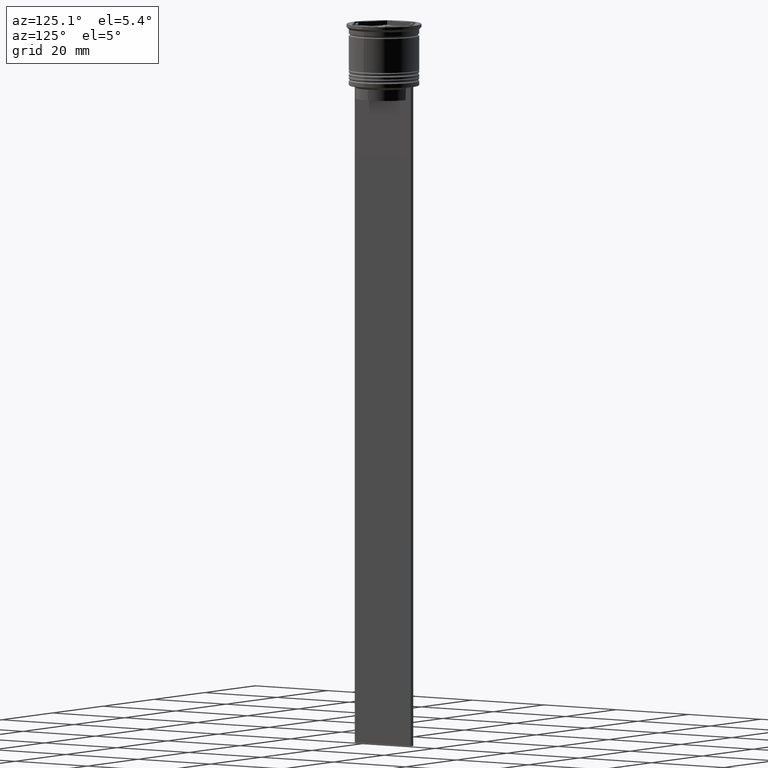
[diagram: clean part render]
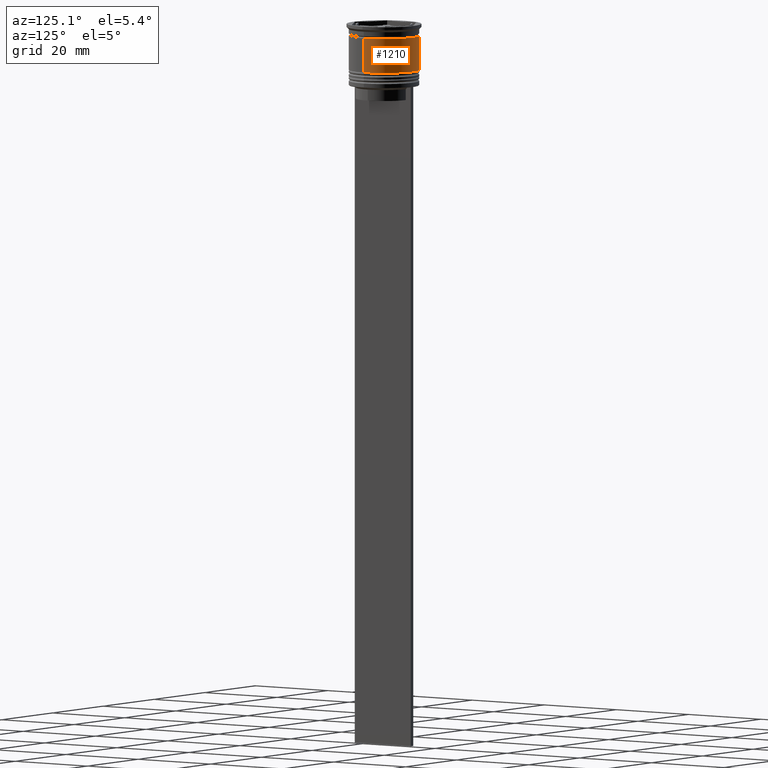
[diagram: same view with one face highlighted and labeled with its STEP entity id]
A machine part, auxiliary view. The second image highlights one B-rep face of the part: STEP entity #1210.
In plain terms, the highlighted cylindrical surface (edge-blend (fillet) strip) has radius 8 mm, axis along (-0, -0, 1).
Its self-contained STEP definition (entity closure, byte-faithful):
#3 = CARTESIAN_POINT ( 'NONE',  ( 0.000000000000000000, 0.000000000000000000, -10.50000000000000000 ) ) ;
#157 = CARTESIAN_POINT ( 'NONE',  ( 8.000000000000001776, 0.000000000000000000, -10.50000000000000000 ) ) ;
#189 = DIRECTION ( 'NONE',  ( 1.000000000000000000, 0.000000000000000000, 0.000000000000000000 ) ) ;
#234 = CARTESIAN_POINT ( 'NONE',  ( 0.000000000000000000, 0.000000000000000000, 0.000000000000000000 ) ) ;
#253 = DIRECTION ( 'NONE',  ( -0.000000000000000000, -0.000000000000000000, 1.000000000000000000 ) ) ;
#291 = ORIENTED_EDGE ( 'NONE', *, *, #2361, .F. ) ;
#318 = VERTEX_POINT ( 'NONE', #1354 ) ;
#449 = DIRECTION ( 'NONE',  ( -0.000000000000000000, -0.000000000000000000, 1.000000000000000000 ) ) ;
#499 = VERTEX_POINT ( 'NONE', #157 ) ;
#609 = CARTESIAN_POINT ( 'NONE',  ( 7.999999999999998224, 0.000000000000000000, -2.700000000000001510 ) ) ;
#661 = VERTEX_POINT ( 'NONE', #609 ) ;
#680 = DIRECTION ( 'NONE',  ( -0.000000000000000000, -0.000000000000000000, 1.000000000000000000 ) ) ;
#688 = ORIENTED_EDGE ( 'NONE', *, *, #1709, .T. ) ;
#719 = VECTOR ( 'NONE', #449, 1000.000000000000000 ) ;
#838 = DIRECTION ( 'NONE',  ( 1.000000000000000000, 0.000000000000000000, 0.000000000000000000 ) ) ;
#854 = VERTEX_POINT ( 'NONE', #1759 ) ;
#870 = AXIS2_PLACEMENT_3D ( 'NONE', #3, #1514, #189 ) ;
#1096 = CARTESIAN_POINT ( 'NONE',  ( 8.000000000000000000, 0.000000000000000000, 0.000000000000000000 ) ) ;
#1210 = ADVANCED_FACE ( 'NONE', ( #1537 ), #2093, .T. ) ;
#1341 = CARTESIAN_POINT ( 'NONE',  ( -8.000000000000000000, 9.797174393178825657E-16, 0.000000000000000000 ) ) ;
#1354 = CARTESIAN_POINT ( 'NONE',  ( -7.999999999999998224, 9.797174393178823685E-16, -2.700000000000001510 ) ) ;
#1454 = AXIS2_PLACEMENT_3D ( 'NONE', #234, #253, #838 ) ;
#1514 = DIRECTION ( 'NONE',  ( -0.000000000000000000, -0.000000000000000000, 1.000000000000000000 ) ) ;
#1537 = FACE_OUTER_BOUND ( 'NONE', #2255, .T. ) ;
#1615 = VECTOR ( 'NONE', #1887, 1000.000000000000000 ) ;
#1709 = EDGE_CURVE ( 'NONE', #854, #318, #2307, .T. ) ;
#1759 = CARTESIAN_POINT ( 'NONE',  ( -8.000000000000001776, 9.797174393178827630E-16, -10.50000000000000000 ) ) ;
#1783 = EDGE_CURVE ( 'NONE', #661, #318, #2160, .T. ) ;
#1812 = AXIS2_PLACEMENT_3D ( 'NONE', #2371, #680, #2346 ) ;
#1824 = LINE ( 'NONE', #1096, #1615 ) ;
#1880 = CIRCLE ( 'NONE', #870, 8.000000000000001776 ) ;
#1887 = DIRECTION ( 'NONE',  ( -0.000000000000000000, -0.000000000000000000, 1.000000000000000000 ) ) ;
#1905 = EDGE_CURVE ( 'NONE', #499, #854, #1880, .T. ) ;
#2040 = ORIENTED_EDGE ( 'NONE', *, *, #1905, .T. ) ;
#2093 = CYLINDRICAL_SURFACE ( 'NONE', #1454, 8.000000000000000000 ) ;
#2160 = CIRCLE ( 'NONE', #1812, 7.999999999999998224 ) ;
#2204 = ORIENTED_EDGE ( 'NONE', *, *, #1783, .F. ) ;
#2255 = EDGE_LOOP ( 'NONE', ( #2040, #688, #2204, #291 ) ) ;
#2307 = LINE ( 'NONE', #1341, #719 ) ;
#2346 = DIRECTION ( 'NONE',  ( 1.000000000000000000, 0.000000000000000000, 0.000000000000000000 ) ) ;
#2361 = EDGE_CURVE ( 'NONE', #499, #661, #1824, .T. ) ;
#2371 = CARTESIAN_POINT ( 'NONE',  ( 0.000000000000000000, 0.000000000000000000, -2.700000000000001510 ) ) ;